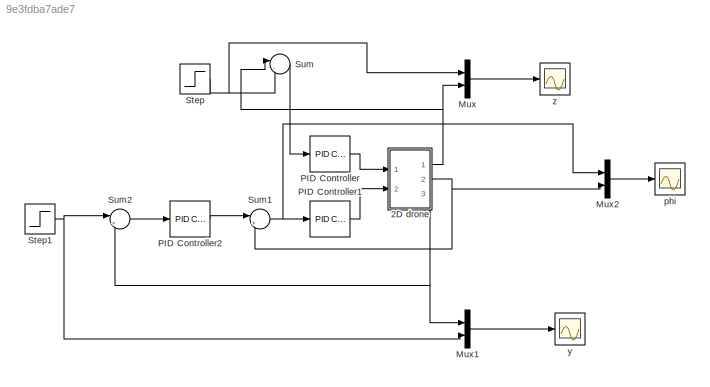
MODEL slx_9e3fdba7ade7
KIND model
CONFIG AbsTol = auto
CONFIG EnableMultiTasking = off
CONFIG FixedStep = auto
CONFIG MaxStep = auto
CONFIG MinStep = auto
CONFIG RelTol = 1e-3
CONFIG SampleTimeConstraint = Unconstrained
CONFIG SolverName = VariableStepAuto
CONFIG StartTime = 0.0
CONFIG StopTime = 10.0
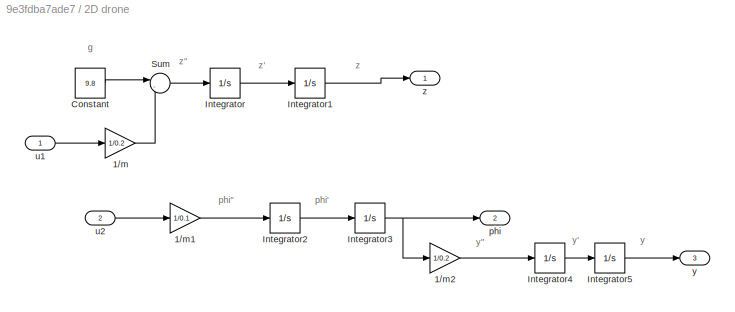
BLOCK [SubSystem] 2D drone
  Ports = [2, 3]
  RequestExecContextInheritance = off
BLOCK [Gain] 2D drone/1//m
  Gain = 1/0.2
BLOCK [Gain] 2D drone/1//m1
  Gain = 1/0.1
BLOCK [Gain] 2D drone/1//m2
  Gain = 1/0.2
BLOCK [Constant] 2D drone/Constant
  Value = 9.8
BLOCK [Integrator] 2D drone/Integrator
  Ports = [1, 1]
BLOCK [Integrator] 2D drone/Integrator1
  Ports = [1, 1]
BLOCK [Integrator] 2D drone/Integrator2
  Ports = [1, 1]
BLOCK [Integrator] 2D drone/Integrator3
  Ports = [1, 1]
BLOCK [Integrator] 2D drone/Integrator4
  Ports = [1, 1]
BLOCK [Integrator] 2D drone/Integrator5
  Ports = [1, 1]
BLOCK [Sum] 2D drone/Sum
  Inputs = |-+
  Ports = [2, 1]
BLOCK [Outport] 2D drone/phi
  Port = 2
BLOCK [Inport] 2D drone/u1
BLOCK [Inport] 2D drone/u2
  Port = 2
BLOCK [Outport] 2D drone/y
  Port = 3
BLOCK [Outport] 2D drone/z
BLOCK [Mux] Mux
  DisplayOption = bar
  Inputs = 2
  Ports = [2, 1]
BLOCK [Mux] Mux1
  DisplayOption = bar
  Inputs = 2
  Ports = [2, 1]
BLOCK [Mux] Mux2
  DisplayOption = bar
  Inputs = 2
  Ports = [2, 1]
BLOCK [Reference] PID Controller  REF=slpidlib/PID Controller
  Ports = [1, 1]
  SourceBlock = slpidlib/PID Controller
  SourceProductBaseCode = SL
  SourceType = PID 1dof
BLOCK [Reference] PID Controller1  REF=slpidlib/PID Controller
  Ports = [1, 1]
  SourceBlock = slpidlib/PID Controller
  SourceProductBaseCode = SL
  SourceType = PID 1dof
BLOCK [Reference] PID Controller2  REF=slpidlib/PID Controller
  Ports = [1, 1]
  SourceBlock = slpidlib/PID Controller
  SourceProductBaseCode = SL
  SourceType = PID 1dof
BLOCK [Step] Step
  SampleTime = 0
BLOCK [Step] Step1
  SampleTime = 0
BLOCK [Sum] Sum
  Inputs = |-+
  Ports = [2, 1]
BLOCK [Sum] Sum1
  Inputs = |+-
  Ports = [2, 1]
BLOCK [Sum] Sum2
  Inputs = |+-
  Ports = [2, 1]
BLOCK [Scope] phi
  Floating = off
  NumInputPorts = 1
  Ports = [1]
  ScopeSpecificationString = Simulink.scopes.TimeScopeBlockCfg('CurrentConfiguration', extmgr.ConfigurationSet(extmgr.Configuration('Core','General UI',true),extmgr.Configuration('Core','Source UI',true),extmgr.Configuration('Sources','WiredSimulink',true,'DataLoggingVariableName','ScopeData1'),extmgr.Configuration('Visuals','Time Domain',true,'SerializedDisplays',{struct('MinYLimReal','-370535.60393','MaxYLimReal','212449.24...<+1443ch>
BLOCK [Scope] y
  Floating = off
  NumInputPorts = 1
  Ports = [1]
  ScopeSpecificationString = Simulink.scopes.TimeScopeBlockCfg('CurrentConfiguration', extmgr.ConfigurationSet(extmgr.Configuration('Core','General UI',true),extmgr.Configuration('Core','Source UI',true),extmgr.Configuration('Sources','WiredSimulink',true,'DataLoggingVariableName','ScopeData2'),extmgr.Configuration('Visuals','Time Domain',true,'SerializedDisplays',{struct('MinYLimReal','-91516.91274','MaxYLimReal','321162.873...<+1411ch>
BLOCK [Scope] z
  Floating = off
  NumInputPorts = 1
  Ports = [1]
  ScopeSpecificationString = Simulink.scopes.TimeScopeBlockCfg('CurrentConfiguration', extmgr.ConfigurationSet(extmgr.Configuration('Core','General UI',true),extmgr.Configuration('Core','Source UI',true),extmgr.Configuration('Sources','WiredSimulink',true),extmgr.Configuration('Visuals','Time Domain',true,'SerializedDisplays',{struct('MinYLimReal','-132.11286','MaxYLimReal','124.01768','YLabelReal','','MinYLimMag',' 0.00000',...<+1428ch>
ANNOTATION 2D drone: g
ANNOTATION 2D drone: phi"
ANNOTATION 2D drone: phi'
ANNOTATION 2D drone: y
ANNOTATION 2D drone: y"
ANNOTATION 2D drone: y'
ANNOTATION 2D drone: z
ANNOTATION 2D drone: z"
ANNOTATION 2D drone: z'
LINE 2D drone/1//m1:1 -> 2D drone/Integrator2:1
LINE 2D drone/1//m2:1 -> 2D drone/Integrator4:1
LINE 2D drone/1//m:1 -> 2D drone/Sum:2
LINE 2D drone/Constant:1 -> 2D drone/Sum:1
LINE 2D drone/Integrator1:1 -> 2D drone/z:1
LINE 2D drone/Integrator2:1 -> 2D drone/Integrator3:1
NET 2D drone/Integrator3:1 -> 2D drone/1//m2:1, 2D drone/phi:1
LINE 2D drone/Integrator4:1 -> 2D drone/Integrator5:1
LINE 2D drone/Integrator5:1 -> 2D drone/y:1
LINE 2D drone/Integrator:1 -> 2D drone/Integrator1:1
LINE 2D drone/Sum:1 -> 2D drone/Integrator:1
LINE 2D drone/u1:1 -> 2D drone/1//m:1
LINE 2D drone/u2:1 -> 2D drone/1//m1:1
NET 2D drone:1 -> Mux:2, Sum:1
NET 2D drone:2 -> Mux2:2, Sum1:2
NET 2D drone:3 -> Mux1:1, Sum2:2
LINE Mux1:1 -> y:1
LINE Mux2:1 -> phi:1
LINE Mux:1 -> z:1
LINE PID Controller1:1 -> 2D drone:2
LINE PID Controller2:1 -> Sum1:1
LINE PID Controller:1 -> 2D drone:1
NET Step1:1 -> Mux1:2, Sum2:1
NET Step:1 -> Mux:1, Sum:2
NET Sum1:1 -> Mux2:1, PID Controller1:1
LINE Sum2:1 -> PID Controller2:1
LINE Sum:1 -> PID Controller:1
note: NET lines group one-source signal fan-out (src -> all destinations, sorted); 1:1 wires keep LINE
